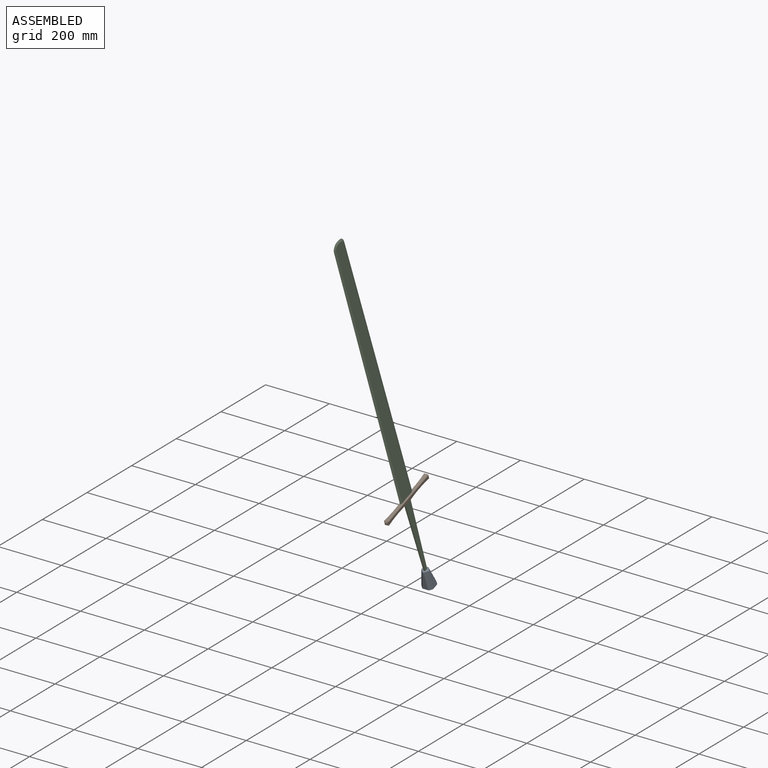
[diagram: assembled view]
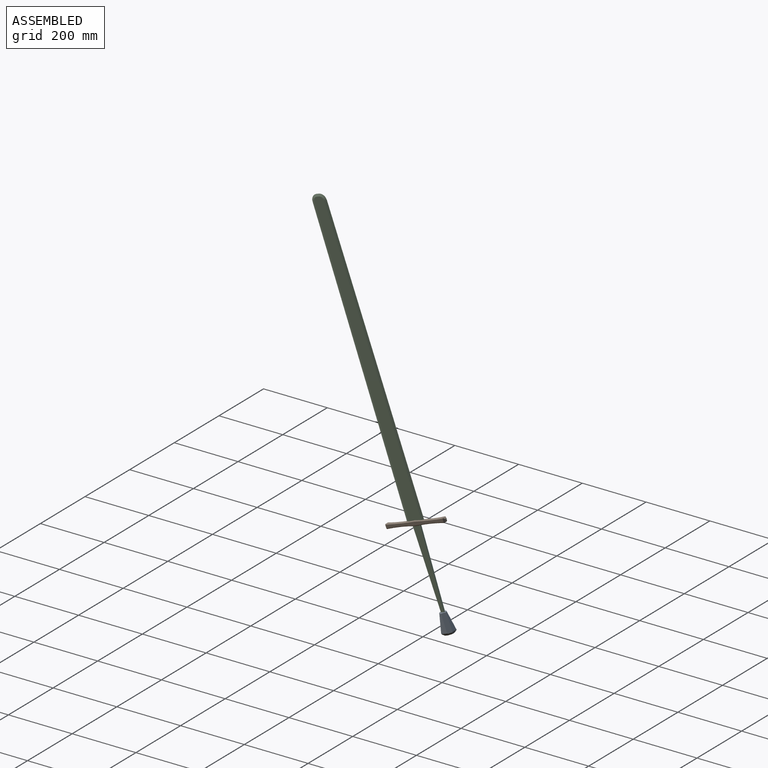
[diagram: assembled view, second angle]
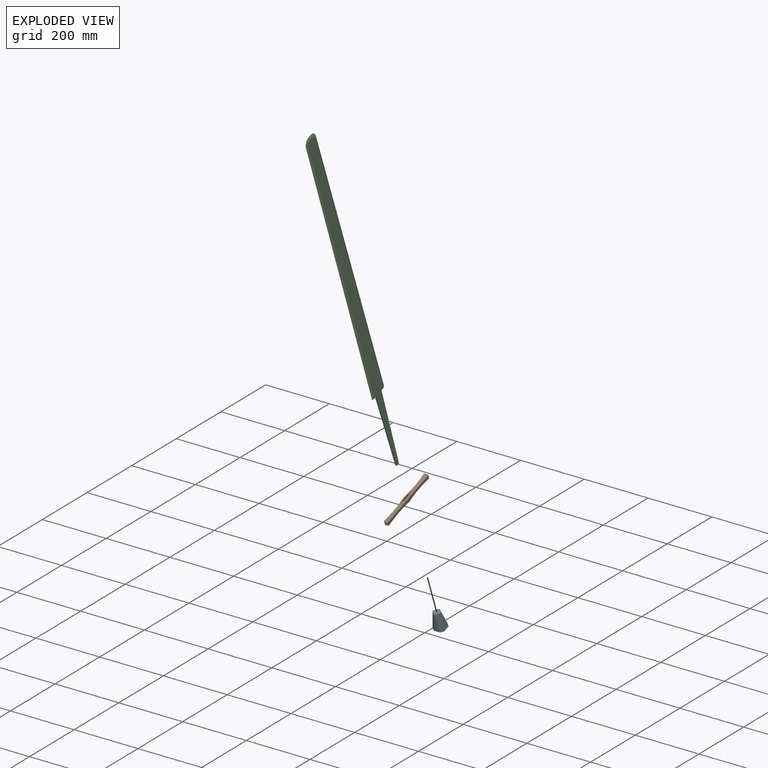
[diagram: exploded view]
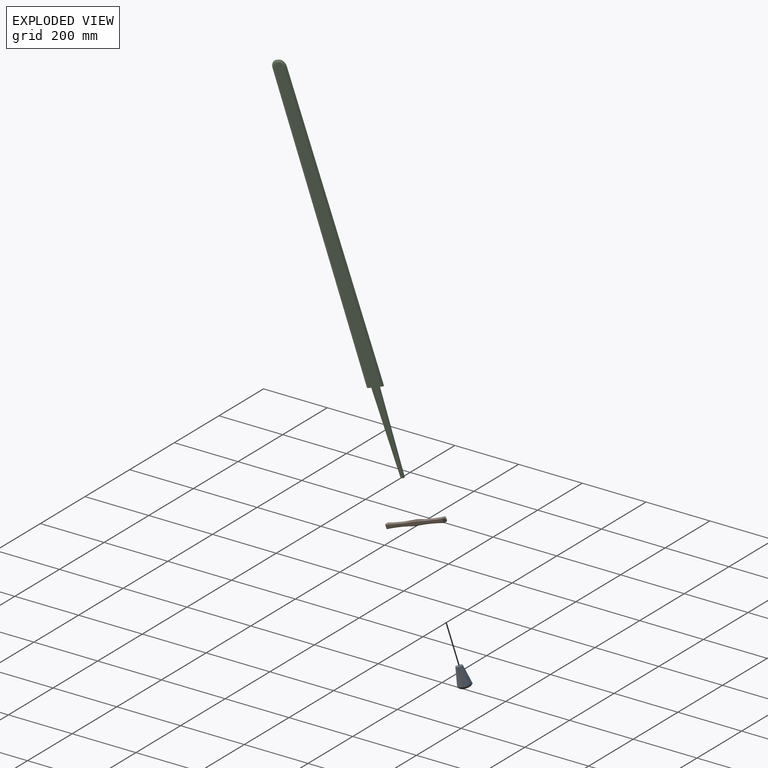
[diagram: exploded view, second angle]
ASSEMBLY  parts=3 mates=2
PART A: 26 faces, bbox 38.1x38.1x60 mm
  f0: plane 52.08x17.86mm, normal (0,-0.99,-0.14), area 554.3mm2, adj f7,f12,f14,f19
  f1: plane 52.08x17.86mm, normal (0.99,0,-0.14), area 554.3mm2, adj f6,f14,f16,f20
  f2: plane 52.08x17.86mm, normal (0,0.99,-0.14), area 554.3mm2, adj f8,f10,f16,f24
  f3: plane 52.08x17.86mm, normal (-0.99,0,-0.14), area 554.3mm2, adj f9,f10,f12,f23
  f4: plane 21.14x21.14mm, normal (0,0,-1), area 268.8mm2, adj f18,f19,f20,f21,f22,f23,f24,f25
  f5: plane 26x26mm, normal (0,0,1), area 557.6mm2, adj f6,f7,f8,f9,f11,f13,f15,f17
  f6: plane 20.59x6.93mm, normal (0.75,0,0.66), area 149mm2, adj f1,f5,f14,f15,f16,f17
  f7: plane 20.59x6.93mm, normal (0,-0.75,0.66), area 149mm2, adj f0,f5,f12,f13,f14,f15
  f8: plane 20.59x6.93mm, normal (0,0.75,0.66), area 149mm2, adj f2,f5,f10,f11,f16,f17
  f9: plane 20.59x6.93mm, normal (-0.75,0,0.66), area 149mm2, adj f3,f5,f10,f11,f12,f13
  f10: plane 53.33x17.42mm, normal (-0.69,0.69,-0.19), area 774.3mm2, adj f2,f3,f8,f9,f11,f23,f24,f25
  f11: plane 12.69x12.69mm, normal (-0.45,0.45,0.78), area 99mm2, adj f5,f8,f9,f10
  f12: plane 53.33x17.42mm, normal (-0.69,-0.69,-0.19), area 774.3mm2, adj f0,f3,f7,f9,f13,f19,f21,f23
  f13: plane 12.69x12.69mm, normal (-0.45,-0.45,0.78), area 99mm2, adj f5,f7,f9,f12
  f14: plane 53.33x17.42mm, normal (0.69,-0.69,-0.19), area 774.3mm2, adj f0,f1,f6,f7,f15,f18,f19,f20
  f15: plane 12.69x12.69mm, normal (0.45,-0.45,0.78), area 99mm2, adj f5,f6,f7,f14
  f16: plane 53.33x17.42mm, normal (0.69,0.69,-0.19), area 774.3mm2, adj f1,f2,f6,f8,f17,f20,f22,f24
  f17: plane 12.69x12.69mm, normal (0.45,0.45,0.78), area 99mm2, adj f5,f6,f8,f16
  f18: plane 10.5x10.5mm, normal (0.45,-0.45,-0.77), area 20mm2, adj f4,f14,f19,f20
  f19: plane 3.33x1.14mm, normal (0,-0.66,-0.75), area 4.3mm2, adj f0,f4,f12,f14,f18,f21
  f20: plane 3.33x1.14mm, normal (0.66,0,-0.75), area 4.3mm2, adj f1,f4,f14,f16,f18,f22
  f21: plane 10.5x10.5mm, normal (-0.45,-0.45,-0.77), area 20mm2, adj f4,f12,f19,f23
  f22: plane 10.5x10.5mm, normal (0.45,0.45,-0.77), area 20mm2, adj f4,f16,f20,f24
  f23: plane 3.33x1.14mm, normal (-0.66,0,-0.75), area 4.3mm2, adj f3,f4,f10,f12,f21,f25
  f24: plane 3.33x1.14mm, normal (0,0.66,-0.75), area 4.3mm2, adj f2,f4,f10,f16,f22,f25
  f25: plane 10.5x10.5mm, normal (-0.45,0.45,-0.77), area 20mm2, adj f4,f10,f23,f24
PART B: 36 faces, bbox 15.9x210.1x16.8 mm
  f0: plane 5.7x5.61mm, normal (0,1,-0.06), area 31.9mm2, adj f32,f33,f34,f35
  f1: plane 5.62x5.62mm, normal (0,-1,0), area 31.6mm2, adj f28,f29,f30,f31
  f2: plane 11.2x5mm, normal (0,-1,0), area 56mm2, adj f3,f5,f11,f15
  f3: plane 43x15mm, normal (1,0,0), area 390.4mm2, adj f2,f4,f7,f8,f10,f11,f12,f13
  f4: plane 11.25x5mm, normal (0,1,0), area 56.2mm2, adj f3,f5,f8,f13
  f5: plane 43x15mm, normal (-1,0,0), area 390.4mm2, adj f2,f4,f6,f8,f9,f11,f12,f13
  f6: plane 7x2.5mm, normal (-0.94,0.34,0), area 12.3mm2, adj f5,f7,f8,f12
  f7: plane 7x2.5mm, normal (0.94,0.34,0), area 12.3mm2, adj f3,f6,f8,f12
  f8: plane 16x5mm, normal (0,0,1), area 62.5mm2, adj f3,f4,f5,f6,f7
  f9: plane 7x2.5mm, normal (-0.94,-0.34,0), area 12.3mm2, adj f5,f10,f11,f14
  f10: plane 7x2.5mm, normal (0.94,-0.34,0), area 12.3mm2, adj f3,f9,f11,f14
  f11: plane 16x5mm, normal (0,0,1), area 62.5mm2, adj f2,f3,f5,f9,f10
  f12: cylinder r=700mm len=95.34mm, axis (1,0,0), area 688.9mm2, adj f3,f5,f6,f7,f14,f20,f21,f26
  f13: cylinder r=700mm len=94.88mm, axis (1,0,0), area 748.7mm2, adj f3,f4,f5,f15,f23,f25,f29
  f14: cylinder r=700mm len=95.05mm, axis (1,0,0), area 685.3mm2, adj f3,f5,f9,f10,f12,f21,f26,f34
  f15: cylinder r=700mm len=95.16mm, axis (1,0,0), area 747.1mm2, adj f2,f3,f5,f13,f22,f24,f33
  f16: cylinder r=700mm len=95.64mm, axis (0,0,-1), area 811.9mm2, adj f18,f20,f21,f22,f32
  f17: cylinder r=700mm len=95.64mm, axis (0,0,-1), area 811.8mm2, adj f19,f24,f26,f27,f35
  f18: cylinder r=700mm len=94.88mm, axis (0,0,-1), area 807.5mm2, adj f16,f20,f23,f28
  f19: cylinder r=700mm len=94.88mm, axis (0,0,-1), area 807.5mm2, adj f17,f25,f27,f31
  f20: bspline ~110.09x4.19mm, area 272mm2, adj f12,f16,f18,f21,f28,f30
  f21: bspline ~110.43x4.24mm, area 272.6mm2, adj f12,f14,f16,f20,f32,f34
  f22: bspline ~109.75x4.17mm, area 271.9mm2, adj f15,f16,f23,f32,f33
  f23: bspline ~95.89x3.76mm, area 271.4mm2, adj f13,f18,f22,f28,f29
  f24: bspline ~109.75x4.17mm, area 271.9mm2, adj f15,f17,f25,f33,f35
  f25: bspline ~95.89x3.76mm, area 271.4mm2, adj f13,f19,f24,f29,f31
  f26: bspline ~110.43x4.24mm, area 272.6mm2, adj f12,f14,f17,f27,f34,f35
  f27: bspline ~110.09x4.19mm, area 272mm2, adj f12,f17,f19,f26,f30,f31
  f28: plane 12.49x4.66mm, normal (-0.73,-0.68,0), area 61.1mm2, adj f1,f18,f20,f23,f29,f30
  f29: plane 12.49x4.66mm, normal (0,-0.68,-0.73), area 61.1mm2, adj f1,f13,f23,f25,f28,f31
  f30: plane 12.49x4.67mm, normal (0,-0.68,0.73), area 61.2mm2, adj f1,f12,f20,f27,f28,f31
  f31: plane 12.49x4.66mm, normal (0.73,-0.68,0), area 61.1mm2, adj f1,f19,f25,f27,f29,f30
  f32: bspline ~16.75x5.65mm, area 61.1mm2, adj f0,f16,f21,f22,f33,f34
  f33: plane 12.25x4.66mm, normal (0,0.66,-0.75), area 58.5mm2, adj f0,f15,f22,f24,f32,f35
  f34: plane 12.84x4.66mm, normal (0,0.71,0.71), area 64.5mm2, adj f0,f14,f21,f26,f32,f35
  f35: bspline ~16.75x5.65mm, area 61.1mm2, adj f0,f17,f24,f26,f33,f34
PART C: 17 faces, bbox 5x57x1150 mm
  f0: plane 1143x43mm, normal (1,0,0), area 38526.7mm2, adj f1,f3,f4,f5,f7,f9,f11,f13
  f1: plane 10x5mm, normal (0,0,-1), area 50mm2, adj f0,f2,f15,f16
  f2: plane 1143x43mm, normal (-1,0,0), area 38526.7mm2, adj f1,f3,f4,f6,f8,f10,f12,f14
  f3: plane 16x5mm, normal (0,0,-1), area 62.5mm2, adj f0,f2,f5,f6,f16
  f4: plane 16x5mm, normal (0,0,-1), area 62.5mm2, adj f0,f2,f13,f14,f15
  f5: plane 880.1x11.61mm, normal (0.94,0.34,0), area 6541.8mm2, adj f0,f3,f6,f7
  f6: plane 880.1x11.61mm, normal (-0.94,0.34,0), area 6541.8mm2, adj f2,f3,f5,f8
  f7: cone r=13mm half-angle=70.3deg, axis (-1,0,0), area 192mm2, adj f0,f5,f8,f9
  f8: cone r=13mm half-angle=70.3deg, axis (1,0,0), area 192mm2, adj f2,f6,f7,f10
  f9: plane 7.78x7mm, normal (0.94,0,0.34), area 57.9mm2, adj f0,f7,f10,f11
  f10: plane 7.78x7mm, normal (-0.94,0,0.34), area 57.9mm2, adj f2,f8,f9,f12
  f11: cone r=13mm half-angle=70.3deg, axis (-1,0,0), area 192mm2, adj f0,f9,f12,f13
  f12: cone r=13mm half-angle=70.3deg, axis (1,0,0), area 192mm2, adj f2,f10,f11,f14
  f13: plane 880.1x11.61mm, normal (0.94,-0.34,0), area 6541.8mm2, adj f0,f4,f11,f14
  f14: plane 880.1x11.61mm, normal (-0.94,-0.34,0), area 6541.8mm2, adj f2,f4,f12,f13
  f15: plane 250x7.5mm, normal (0,-1,-0.03), area 1250.6mm2, adj f0,f1,f2,f4
  f16: plane 250x7.5mm, normal (0,1,-0.03), area 1250.6mm2, adj f0,f1,f2,f3
PLACE A rot(axis=(-1,0,0),160deg) t=(-86.59,108.02,-432.59)mm
PLACE B rot(axis=(1,0,0),20deg) t=(-114.09,80.86,-125.37)mm
PLACE C rot(axis=(1,0,0),20deg) t=(-109.09,-43.58,-157.87)mm
MATE fastened A.f4 <-> C.f1  axis (0,-0.34,0.94) through (-106.59,68.71,-383.04)mm
MATE fastened B.f8 <-> C.f4  axis (0,-0.34,0.94) through (-106.59,-43.58,-157.87)mm
